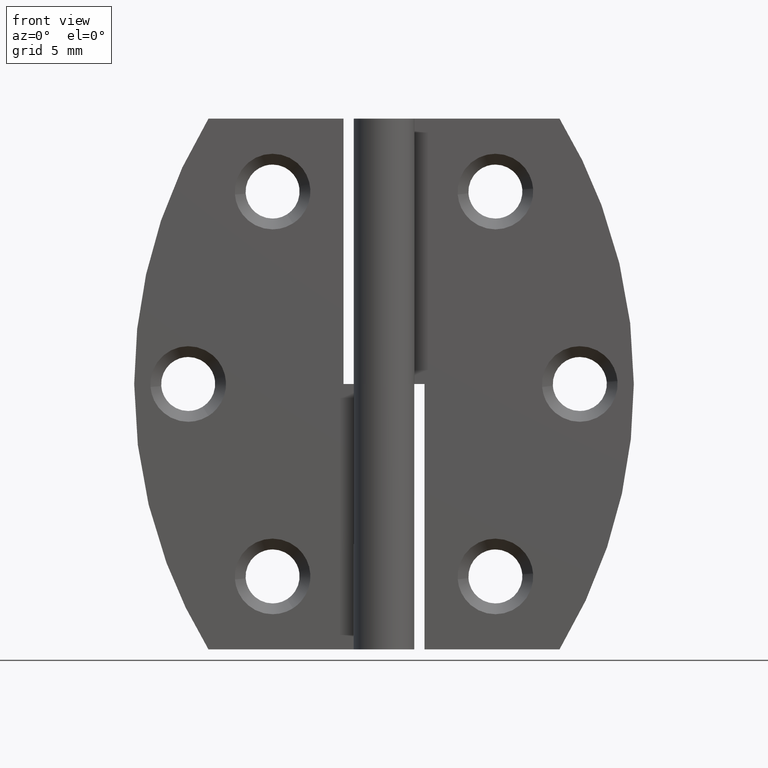
[diagram: clean part render]
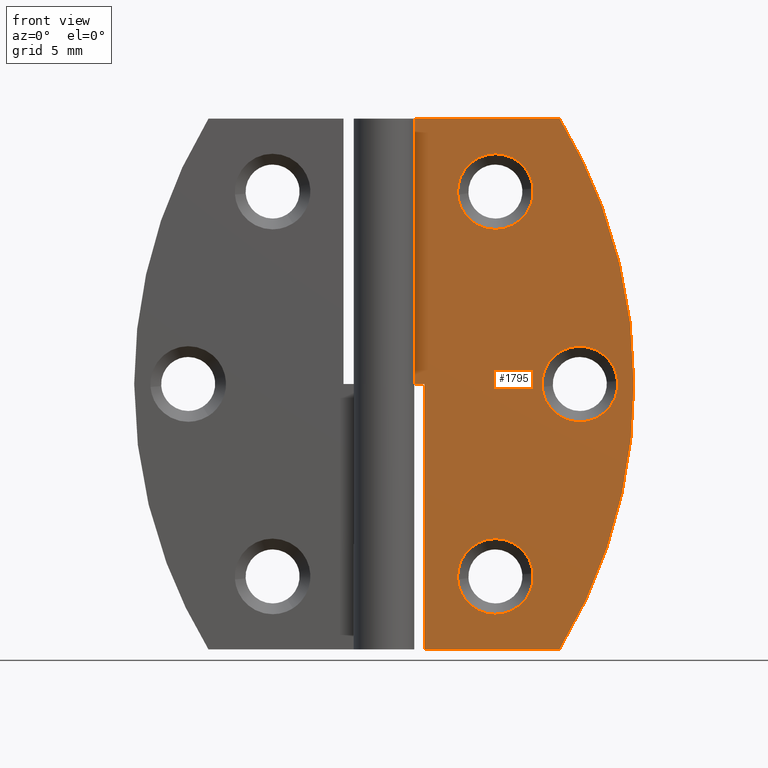
[diagram: same view with one face highlighted and labeled with its STEP entity id]
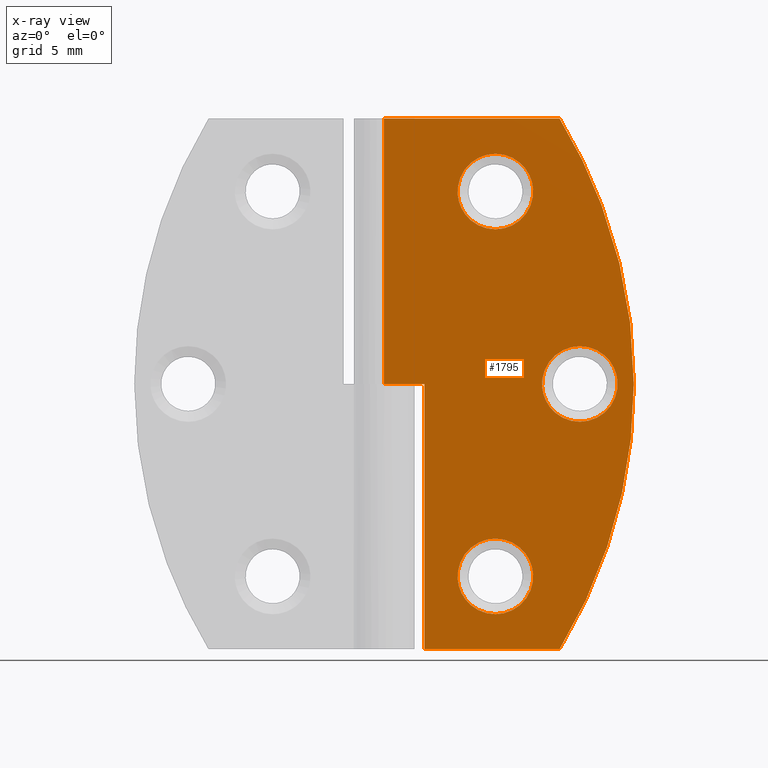
[diagram: x-ray of the same camera — body ghosted, the highlighted face saturated]
A machine part, front view. The second image highlights one B-rep face of the part: STEP entity #1795.
The next image is the same camera in x-ray: the body ghosted, the highlighted face saturated — about 0% of this face is hidden behind the body in this view.
In plain terms, the highlighted face is a freeform B-spline surface patch.
Its self-contained STEP definition (entity closure, byte-faithful):
#657=CARTESIAN_POINT('',(11.041368534459570,1.249999999982986,5.619687468169518));
#658=VERTEX_POINT('',#657);
#664=CARTESIAN_POINT('',(8.250000000000101,1.250000000000000,8.200002000000000));
#665=VERTEX_POINT('',#664);
#666=CARTESIAN_POINT('',(8.250000000000101,1.250000000000000,8.200002000000000));
#667=CARTESIAN_POINT('',(10.838293376400850,1.250000000000000,8.200002000000000));
#668=CARTESIAN_POINT('',(11.041368534459572,1.249999999982986,5.619687468169517));
#676=(BOUNDED_CURVE()B_SPLINE_CURVE(2,(#666,#667,#668),.UNSPECIFIED.,.F.,.U.)B_SPLINE_CURVE_WITH_KNOTS((3,3),(0.0,0.236331300616773),.UNSPECIFIED.)CURVE()GEOMETRIC_REPRESENTATION_ITEM()RATIONAL_B_SPLINE_CURVE((1.0,0.723120658623934,0.969723356138438))REPRESENTATION_ITEM(''));
#677=EDGE_CURVE('',#665,#658,#676,.T.);
#679=CARTESIAN_POINT('',(5.458631465540631,1.249999999982986,5.180316531830481));
#680=VERTEX_POINT('',#679);
#681=CARTESIAN_POINT('',(5.458631465540631,1.249999999982986,5.180316531830481));
#682=CARTESIAN_POINT('',(5.450000000000101,1.250000000000000,5.289989700247703));
#683=CARTESIAN_POINT('',(5.450000000000101,1.250000000000000,5.400002000000000));
#684=CARTESIAN_POINT('',(5.450000000000101,1.250000000000000,8.200002000000000));
#685=CARTESIAN_POINT('',(8.250000000000101,1.250000000000000,8.200002000000000));
#693=(BOUNDED_CURVE()B_SPLINE_CURVE(2,(#681,#682,#683,#684,#685),.UNSPECIFIED.,.F.,.U.)B_SPLINE_CURVE_WITH_KNOTS((3,2,3),(0.736331300616773,0.750000000000000,1.0),.UNSPECIFIED.)CURVE()GEOMETRIC_REPRESENTATION_ITEM()RATIONAL_B_SPLINE_CURVE((0.969723356138437,0.983986122562613,1.0,0.707106781186547,1.0))REPRESENTATION_ITEM(''));
#694=EDGE_CURVE('',#680,#665,#693,.T.);
#731=CARTESIAN_POINT('',(8.250000000000101,1.250000000000000,2.600002000000000));
#732=VERTEX_POINT('',#731);
#733=CARTESIAN_POINT('',(8.250000000000101,1.250000000000000,2.600002000000000));
#734=CARTESIAN_POINT('',(5.661706623599367,1.250000000000000,2.600002000000000));
#735=CARTESIAN_POINT('',(5.458631465540631,1.249999999982986,5.180316531830481));
#743=(BOUNDED_CURVE()B_SPLINE_CURVE(2,(#733,#734,#735),.UNSPECIFIED.,.F.,.U.)B_SPLINE_CURVE_WITH_KNOTS((3,3),(0.500000000000000,0.736331300616772),.UNSPECIFIED.)CURVE()GEOMETRIC_REPRESENTATION_ITEM()RATIONAL_B_SPLINE_CURVE((1.0,0.723120658623936,0.969723356138436))REPRESENTATION_ITEM(''));
#744=EDGE_CURVE('',#732,#680,#743,.T.);
#746=CARTESIAN_POINT('',(11.041368534459574,1.249999999982986,5.619687468169518));
#747=CARTESIAN_POINT('',(11.050000000000100,1.250000000000000,5.510014299752297));
#748=CARTESIAN_POINT('',(11.050000000000100,1.250000000000000,5.400002000000000));
#749=CARTESIAN_POINT('',(11.050000000000102,1.250000000000000,2.600002000000000));
#750=CARTESIAN_POINT('',(8.250000000000101,1.250000000000000,2.600002000000000));
#758=(BOUNDED_CURVE()B_SPLINE_CURVE(2,(#746,#747,#748,#749,#750),.UNSPECIFIED.,.F.,.U.)B_SPLINE_CURVE_WITH_KNOTS((3,2,3),(0.236331300616773,0.250000000000000,0.500000000000000),.UNSPECIFIED.)CURVE()GEOMETRIC_REPRESENTATION_ITEM()RATIONAL_B_SPLINE_CURVE((0.969723356138438,0.983986122562613,1.0,0.707106781186547,1.0))REPRESENTATION_ITEM(''));
#759=EDGE_CURVE('',#658,#732,#758,.T.);
#985=CARTESIAN_POINT('',(11.041368534459570,1.249999999982986,34.119694468169612));
#986=VERTEX_POINT('',#985);
#992=CARTESIAN_POINT('',(8.250000000000101,1.250000000000000,36.700009000000087));
#993=VERTEX_POINT('',#992);
#994=CARTESIAN_POINT('',(8.250000000000101,1.250000000000000,36.700009000000087));
#995=CARTESIAN_POINT('',(10.838293376400852,1.250000000000000,36.700009000000087));
#996=CARTESIAN_POINT('',(11.041368534459570,1.249999999982985,34.119694468169612));
#1004=(BOUNDED_CURVE()B_SPLINE_CURVE(2,(#994,#995,#996),.UNSPECIFIED.,.F.,.U.)B_SPLINE_CURVE_WITH_KNOTS((3,3),(0.0,0.236331300616773),.UNSPECIFIED.)CURVE()GEOMETRIC_REPRESENTATION_ITEM()RATIONAL_B_SPLINE_CURVE((1.0,0.723120658623934,0.969723356138438))REPRESENTATION_ITEM(''));
#1005=EDGE_CURVE('',#993,#986,#1004,.T.);
#1007=CARTESIAN_POINT('',(5.458631465540631,1.249999999982987,33.680323531830581));
#1008=VERTEX_POINT('',#1007);
#1009=CARTESIAN_POINT('',(5.458631465540631,1.249999999982987,33.680323531830581));
#1010=CARTESIAN_POINT('',(5.450000000000100,1.250000000000000,33.789996700247798));
#1011=CARTESIAN_POINT('',(5.450000000000101,1.250000000000000,33.900009000000097));
#1012=CARTESIAN_POINT('',(5.450000000000101,1.250000000000000,36.700009000000094));
#1013=CARTESIAN_POINT('',(8.250000000000101,1.250000000000000,36.700009000000087));
#1021=(BOUNDED_CURVE()B_SPLINE_CURVE(2,(#1009,#1010,#1011,#1012,#1013),.UNSPECIFIED.,.F.,.U.)B_SPLINE_CURVE_WITH_KNOTS((3,2,3),(0.736331300616773,0.750000000000000,1.0),.UNSPECIFIED.)CURVE()GEOMETRIC_REPRESENTATION_ITEM()RATIONAL_B_SPLINE_CURVE((0.969723356138437,0.983986122562613,1.0,0.707106781186547,1.0))REPRESENTATION_ITEM(''));
#1022=EDGE_CURVE('',#1008,#993,#1021,.T.);
#1059=CARTESIAN_POINT('',(8.250000000000101,1.250000000000000,31.100009000000099));
#1060=VERTEX_POINT('',#1059);
#1061=CARTESIAN_POINT('',(8.250000000000101,1.250000000000000,31.100009000000099));
#1062=CARTESIAN_POINT('',(5.661706623599367,1.250000000000000,31.100009000000103));
#1063=CARTESIAN_POINT('',(5.458631465540631,1.249999999982986,33.680323531830581));
#1071=(BOUNDED_CURVE()B_SPLINE_CURVE(2,(#1061,#1062,#1063),.UNSPECIFIED.,.F.,.U.)B_SPLINE_CURVE_WITH_KNOTS((3,3),(0.500000000000000,0.736331300616772),.UNSPECIFIED.)CURVE()GEOMETRIC_REPRESENTATION_ITEM()RATIONAL_B_SPLINE_CURVE((1.0,0.723120658623936,0.969723356138436))REPRESENTATION_ITEM(''));
#1072=EDGE_CURVE('',#1060,#1008,#1071,.T.);
#1074=CARTESIAN_POINT('',(11.041368534459570,1.249999999982985,34.119694468169612));
#1075=CARTESIAN_POINT('',(11.050000000000098,1.250000000000000,34.010021299752388));
#1076=CARTESIAN_POINT('',(11.050000000000100,1.250000000000000,33.900009000000097));
#1077=CARTESIAN_POINT('',(11.050000000000102,1.250000000000000,31.100009000000103));
#1078=CARTESIAN_POINT('',(8.250000000000101,1.250000000000000,31.100009000000099));
#1086=(BOUNDED_CURVE()B_SPLINE_CURVE(2,(#1074,#1075,#1076,#1077,#1078),.UNSPECIFIED.,.F.,.U.)B_SPLINE_CURVE_WITH_KNOTS((3,2,3),(0.236331300616773,0.250000000000000,0.500000000000000),.UNSPECIFIED.)CURVE()GEOMETRIC_REPRESENTATION_ITEM()RATIONAL_B_SPLINE_CURVE((0.969723356138438,0.983986122562613,1.0,0.707106781186547,1.0))REPRESENTATION_ITEM(''));
#1087=EDGE_CURVE('',#986,#1060,#1086,.T.);
#1313=CARTESIAN_POINT('',(17.291368534459469,1.249999999982986,19.869687468169520));
#1314=VERTEX_POINT('',#1313);
#1320=CARTESIAN_POINT('',(14.500000000000000,1.250000000000000,22.450002000000001));
#1321=VERTEX_POINT('',#1320);
#1322=CARTESIAN_POINT('',(14.500000000000000,1.250000000000000,22.450002000000001));
#1323=CARTESIAN_POINT('',(17.088293376400742,1.250000000000000,22.450002000000005));
#1324=CARTESIAN_POINT('',(17.291368534459476,1.249999999982987,19.869687468169516));
#1332=(BOUNDED_CURVE()B_SPLINE_CURVE(2,(#1322,#1323,#1324),.UNSPECIFIED.,.F.,.U.)B_SPLINE_CURVE_WITH_KNOTS((3,3),(0.0,0.236331300616773),.UNSPECIFIED.)CURVE()GEOMETRIC_REPRESENTATION_ITEM()RATIONAL_B_SPLINE_CURVE((1.0,0.723120658623935,0.969723356138437))REPRESENTATION_ITEM(''));
#1333=EDGE_CURVE('',#1321,#1314,#1332,.T.);
#1335=CARTESIAN_POINT('',(11.708631465540529,1.249999999982987,19.430316531830481));
#1336=VERTEX_POINT('',#1335);
#1337=CARTESIAN_POINT('',(11.708631465540529,1.249999999982987,19.430316531830478));
#1338=CARTESIAN_POINT('',(11.700000000000001,1.250000000000000,19.539989700247709));
#1339=CARTESIAN_POINT('',(11.699999999999999,1.250000000000000,19.650002000000001));
#1340=CARTESIAN_POINT('',(11.700000000000001,1.250000000000000,22.450001999999994));
#1341=CARTESIAN_POINT('',(14.500000000000000,1.250000000000000,22.450002000000001));
#1349=(BOUNDED_CURVE()B_SPLINE_CURVE(2,(#1337,#1338,#1339,#1340,#1341),.UNSPECIFIED.,.F.,.U.)B_SPLINE_CURVE_WITH_KNOTS((3,2,3),(0.736331300616773,0.750000000000000,1.0),.UNSPECIFIED.)CURVE()GEOMETRIC_REPRESENTATION_ITEM()RATIONAL_B_SPLINE_CURVE((0.969723356138437,0.983986122562613,1.0,0.707106781186547,1.0))REPRESENTATION_ITEM(''));
#1350=EDGE_CURVE('',#1336,#1321,#1349,.T.);
#1387=CARTESIAN_POINT('',(14.500000000000000,1.250000000000000,16.850002000000000));
#1388=VERTEX_POINT('',#1387);
#1389=CARTESIAN_POINT('',(14.500000000000000,1.250000000000000,16.850002000000000));
#1390=CARTESIAN_POINT('',(11.911706623599267,1.250000000000000,16.850002000000011));
#1391=CARTESIAN_POINT('',(11.708631465540536,1.249999999982987,19.430316531830485));
#1399=(BOUNDED_CURVE()B_SPLINE_CURVE(2,(#1389,#1390,#1391),.UNSPECIFIED.,.F.,.U.)B_SPLINE_CURVE_WITH_KNOTS((3,3),(0.500000000000000,0.736331300616772),.UNSPECIFIED.)CURVE()GEOMETRIC_REPRESENTATION_ITEM()RATIONAL_B_SPLINE_CURVE((1.0,0.723120658623936,0.969723356138436))REPRESENTATION_ITEM(''));
#1400=EDGE_CURVE('',#1388,#1336,#1399,.T.);
#1402=CARTESIAN_POINT('',(17.291368534459476,1.249999999982987,19.869687468169516));
#1403=CARTESIAN_POINT('',(17.300000000000004,1.250000000000000,19.760014299752296));
#1404=CARTESIAN_POINT('',(17.300000000000001,1.250000000000000,19.650002000000001));
#1405=CARTESIAN_POINT('',(17.299999999999997,1.250000000000000,16.850002000000003));
#1406=CARTESIAN_POINT('',(14.500000000000000,1.250000000000000,16.850002000000000));
#1414=(BOUNDED_CURVE()B_SPLINE_CURVE(2,(#1402,#1403,#1404,#1405,#1406),.UNSPECIFIED.,.F.,.U.)B_SPLINE_CURVE_WITH_KNOTS((3,2,3),(0.236331300616773,0.250000000000000,0.500000000000000),.UNSPECIFIED.)CURVE()GEOMETRIC_REPRESENTATION_ITEM()RATIONAL_B_SPLINE_CURVE((0.969723356138437,0.983986122562613,1.0,0.707106781186547,1.0))REPRESENTATION_ITEM(''));
#1415=EDGE_CURVE('',#1314,#1388,#1414,.T.);
#1452=CARTESIAN_POINT('',(13.000003655354099,1.249999999999972,39.300003000000103));
#1453=VERTEX_POINT('',#1452);
#1459=CARTESIAN_POINT('',(13.000003047973660,1.249999999999972,-7.105427E-015));
#1460=VERTEX_POINT('',#1459);
#1461=CARTESIAN_POINT('',(13.000003047973660,1.249999999999972,-1.387779E-014));
#1462=CARTESIAN_POINT('',(24.935030729928812,1.249999999999972,19.650001315544525));
#1463=CARTESIAN_POINT('',(13.000003655354091,1.249999999999972,39.300003000000082));
#1471=(BOUNDED_CURVE()B_SPLINE_CURVE(2,(#1461,#1462,#1463),.UNSPECIFIED.,.F.,.U.)CURVE()GEOMETRIC_REPRESENTATION_ITEM()QUASI_UNIFORM_CURVE()RATIONAL_B_SPLINE_CURVE((1.0,0.854697405180328,1.0))REPRESENTATION_ITEM(''));
#1472=EDGE_CURVE('',#1460,#1453,#1471,.T.);
#1487=CARTESIAN_POINT('',(0.0,1.250000000000000,19.650002000000001));
#1488=VERTEX_POINT('',#1487);
#1545=CARTESIAN_POINT('',(3.000000000000100,1.249999999999972,19.650002000000001));
#1546=VERTEX_POINT('',#1545);
#1552=CARTESIAN_POINT('',(0.0,1.250000000000000,19.650002000000001));
#1553=CARTESIAN_POINT('',(3.000000000000100,1.249999999999972,19.650002000000001));
#1554=QUASI_UNIFORM_CURVE('',1,(#1552,#1553),.UNSPECIFIED.,.F.,.U.);
#1555=EDGE_CURVE('',#1488,#1546,#1554,.T.);
#1573=CARTESIAN_POINT('',(3.000000000000100,1.249999999999972,0.0));
#1574=VERTEX_POINT('',#1573);
#1580=CARTESIAN_POINT('',(3.000000000000100,1.249999999999972,19.650002000000001));
#1581=CARTESIAN_POINT('',(3.000000000000100,1.249999999999972,0.0));
#1582=QUASI_UNIFORM_CURVE('',1,(#1580,#1581),.UNSPECIFIED.,.F.,.U.);
#1583=EDGE_CURVE('',#1546,#1574,#1582,.T.);
#1593=CARTESIAN_POINT('',(0.0,1.250000000000000,39.300003000000153));
#1594=VERTEX_POINT('',#1593);
#1595=CARTESIAN_POINT('',(13.000003655354099,1.249999999999972,39.300003000000103));
#1596=CARTESIAN_POINT('',(0.0,1.250000000000000,39.300003000000153));
#1597=QUASI_UNIFORM_CURVE('',1,(#1595,#1596),.UNSPECIFIED.,.F.,.U.);
#1598=EDGE_CURVE('',#1453,#1594,#1597,.T.);
#1664=CARTESIAN_POINT('',(13.000003047973660,1.249999999999972,-7.105427E-015));
#1665=CARTESIAN_POINT('',(3.000000000000100,1.249999999999972,0.0));
#1666=QUASI_UNIFORM_CURVE('',1,(#1664,#1665),.UNSPECIFIED.,.F.,.U.);
#1667=EDGE_CURVE('',#1460,#1574,#1666,.T.);
#1754=CARTESIAN_POINT('',(0.0,1.250000000000000,39.300003000000153));
#1755=CARTESIAN_POINT('',(0.0,1.250000000000000,19.650002000000001));
#1756=QUASI_UNIFORM_CURVE('',1,(#1754,#1755),.UNSPECIFIED.,.F.,.U.);
#1757=EDGE_CURVE('',#1594,#1488,#1756,.T.);
#1764=CARTESIAN_POINT('',(-0.924075163943405,1.250000000000000,41.263038073679127));
#1765=CARTESIAN_POINT('',(-0.924075163943405,1.250000000000000,-1.963036127787205));
#1766=CARTESIAN_POINT('',(19.424079660152231,1.250000000000000,41.263038073679127));
#1767=CARTESIAN_POINT('',(19.424079660152231,1.250000000000000,-1.963036127787205));
#1768=B_SPLINE_SURFACE_WITH_KNOTS('',1,1,((#1764,#1766),(#1765,#1767)),.UNSPECIFIED.,.F.,.F.,.U.,(2,2),(2,2),(0.0,43.226074201466332),(0.0,20.348154824095641),.UNSPECIFIED.);
#1769=ORIENTED_EDGE('',*,*,#1667,.F.);
#1770=ORIENTED_EDGE('',*,*,#1472,.T.);
#1771=ORIENTED_EDGE('',*,*,#1598,.T.);
#1772=ORIENTED_EDGE('',*,*,#1757,.T.);
#1773=ORIENTED_EDGE('',*,*,#1555,.T.);
#1774=ORIENTED_EDGE('',*,*,#1583,.T.);
#1775=EDGE_LOOP('',(#1769,#1770,#1771,#1772,#1773,#1774));
#1776=FACE_OUTER_BOUND('',#1775,.T.);
#1777=ORIENTED_EDGE('',*,*,#1400,.T.);
#1778=ORIENTED_EDGE('',*,*,#1350,.T.);
#1779=ORIENTED_EDGE('',*,*,#1333,.T.);
#1780=ORIENTED_EDGE('',*,*,#1415,.T.);
#1781=EDGE_LOOP('',(#1777,#1778,#1779,#1780));
#1782=FACE_BOUND('',#1781,.T.);
#1783=ORIENTED_EDGE('',*,*,#1072,.T.);
#1784=ORIENTED_EDGE('',*,*,#1022,.T.);
#1785=ORIENTED_EDGE('',*,*,#1005,.T.);
#1786=ORIENTED_EDGE('',*,*,#1087,.T.);
#1787=EDGE_LOOP('',(#1783,#1784,#1785,#1786));
#1788=FACE_BOUND('',#1787,.T.);
#1789=ORIENTED_EDGE('',*,*,#744,.T.);
#1790=ORIENTED_EDGE('',*,*,#694,.T.);
#1791=ORIENTED_EDGE('',*,*,#677,.T.);
#1792=ORIENTED_EDGE('',*,*,#759,.T.);
#1793=EDGE_LOOP('',(#1789,#1790,#1791,#1792));
#1794=FACE_BOUND('',#1793,.T.);
#1795=ADVANCED_FACE('',(#1776,#1782,#1788,#1794),#1768,.T.);